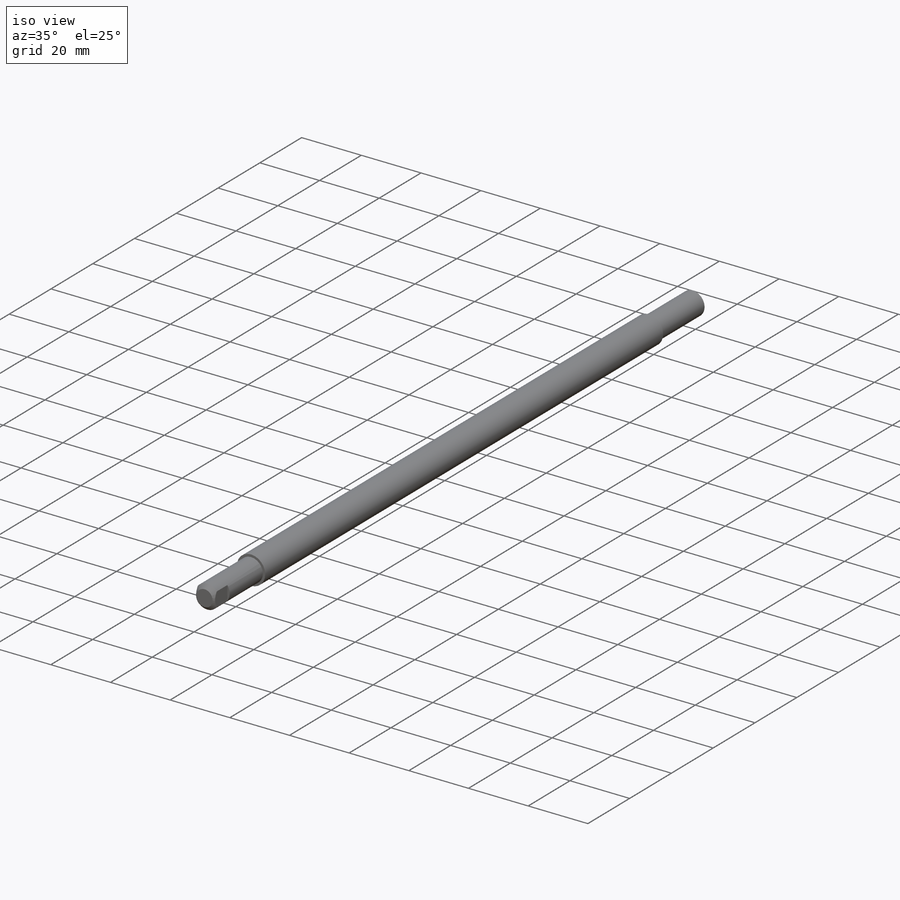
[diagram: iso view]
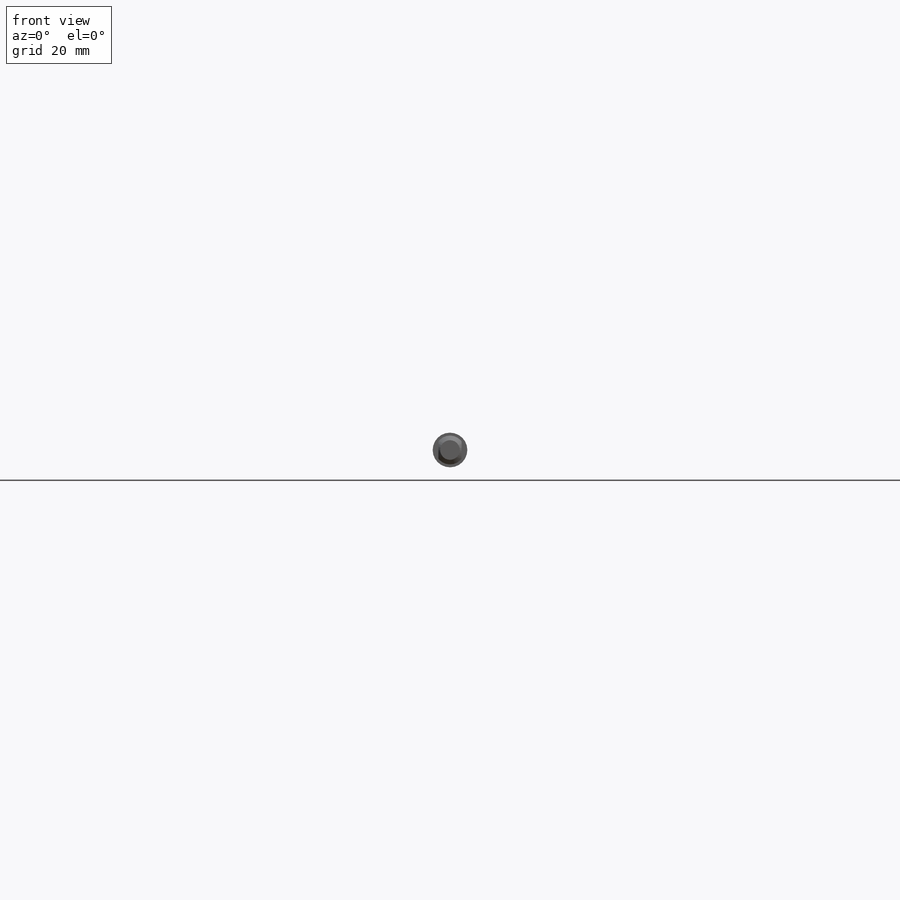
[diagram: front view]
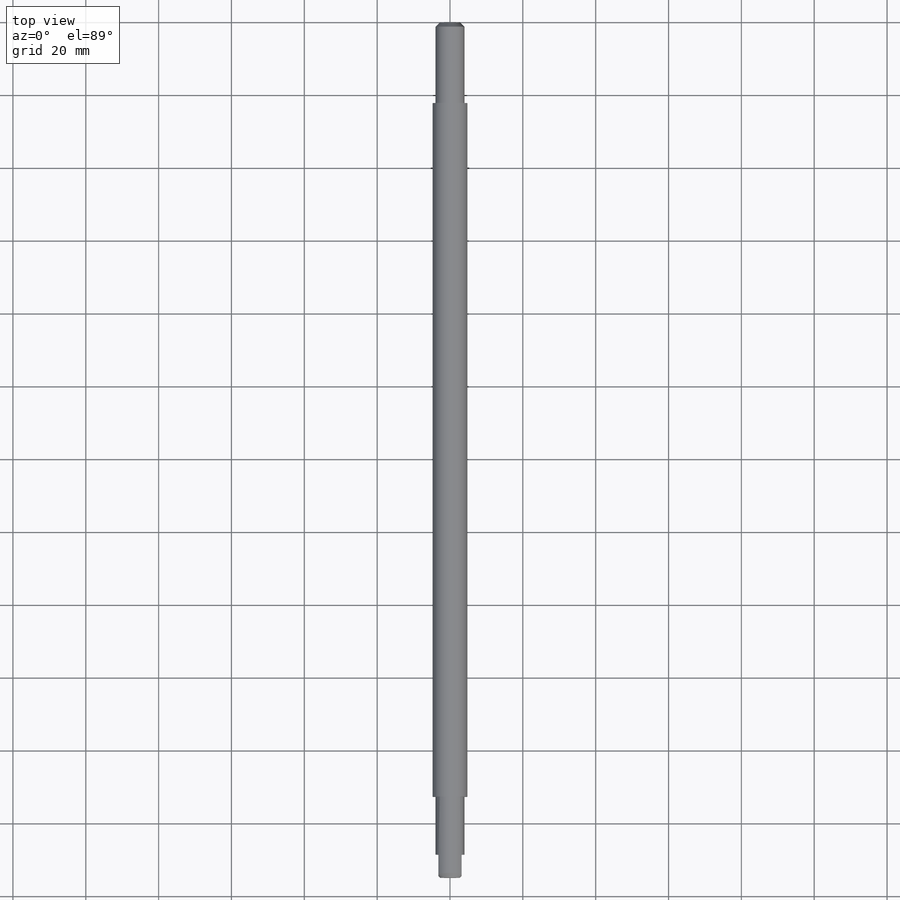
[diagram: top view]
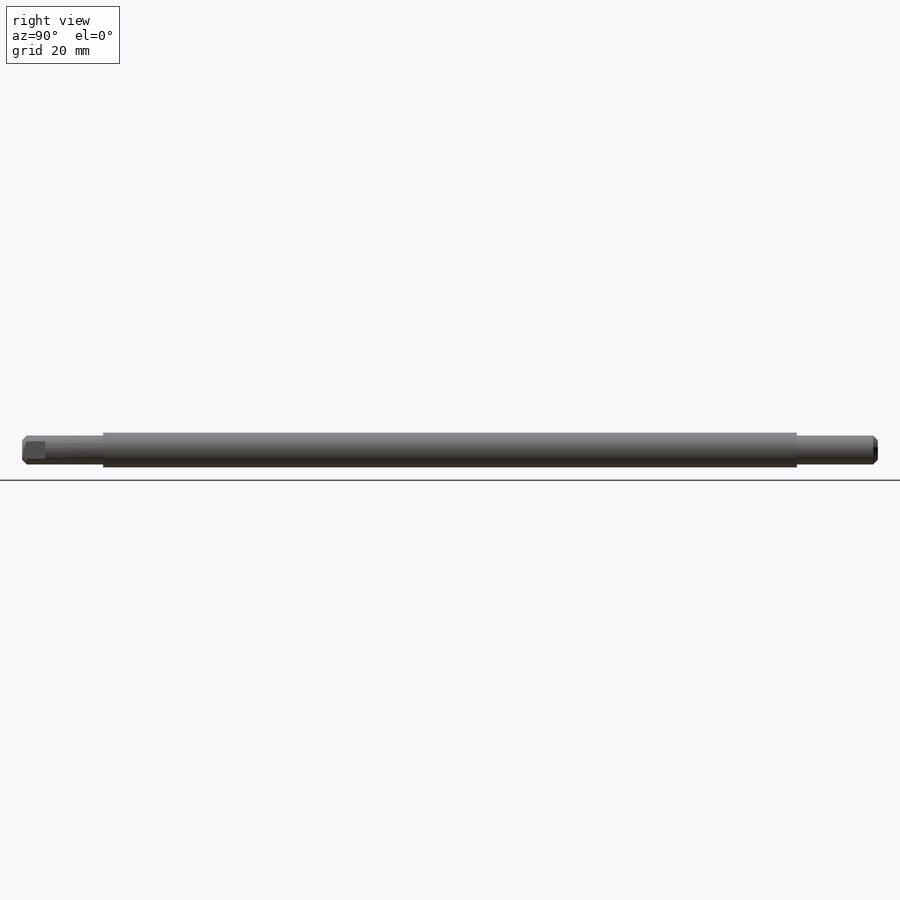
[diagram: right view]
SOLIDWORKS PART (.sldprt)
format: sldprt  version: not decoded by parser v0  size: 305,152 bytes
history: native  units: mm
features: sketch x4, plane x3, thread x2, material x1, extrude x1, chamfer x1, cut_extrude x1, revolve x1 (+11 scaffold rows collapsed)
feature tree (25):
  scaffold x11  (default folders/planes/origin — collapsed)
  material  "304 SSTL"
  plane  "XY"
  plane  "XZ"
  plane  "YZ"
  sketch  "Sketch1"  dims[D1=7.9375mm]
  extrude  "Extrude1"  Depth=234.95mm
  chamfer  "Chamfer1"  Distance=1.27mm Angle=45deg
  sketch  "Sketch2"  dims[D1=22.225mm D2=22.225mm]
  thread  "Cosmetic Thread1"  Diameter=18.2372mm  [1 undecoded]
  thread  "Cosmetic Thread2"  Diameter=18.2372mm cosMaterialEX=27561887 cosMaterialNUXY=290mm cosMaterialGXY=10879692000.0mm cosMaterialALPX=0.01mm cosMaterialDENS=289.01839mm cosMaterialKX=0.21406mm cosMaterialC=119.44577mm Units=1000mm AnalysisType=0mm MeshType=0mm cosMaterialSIGYLD=29999954mm cosMaterialSIGXT=74999812mm cosMaterialSIGXC=0mm sMaterialName=0mm cosFMVItemName=0mm  [1 undecoded]
  sketch  "Sketch3"  dims[D1=6.35mm D2=6.35mm D3=5.3975mm]
  cut_extrude  "Cut-Extrude1"  Depth=354323540000.0mm ID=354323540000.0mm bsiID=0 faceID=1000mm cosFaceID=0
  sketch  "Sketch4"  dims[D1=9.525mm]
  revolve  "Revolve1"  Angle=360deg
decode coverage: 10 of 10 modeling features carry decoded parameters
note: 2 parameter values undecoded
note: suppression state not decoded; provenance and decode notes live in map.json
